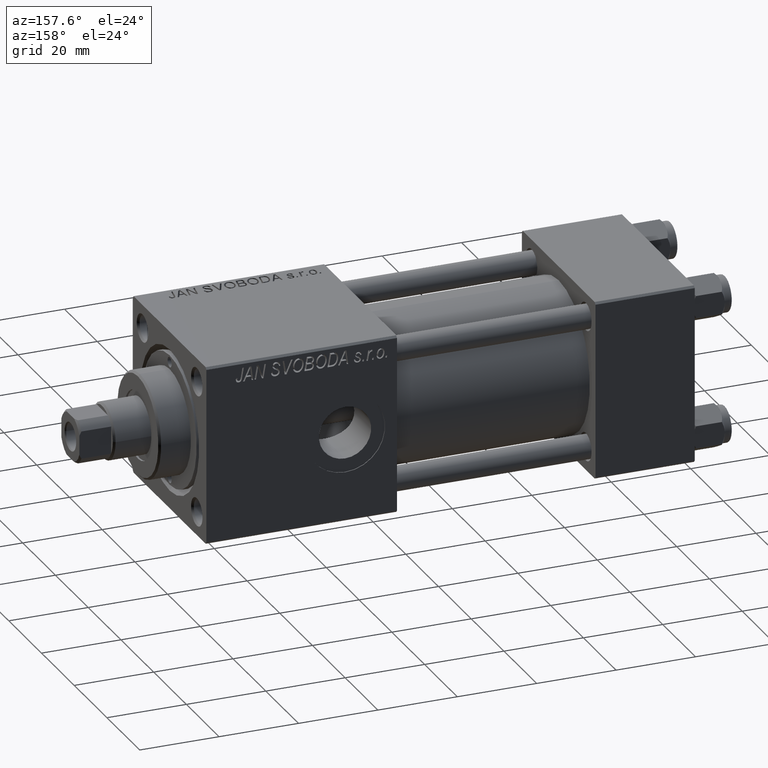
[diagram: clean part render]
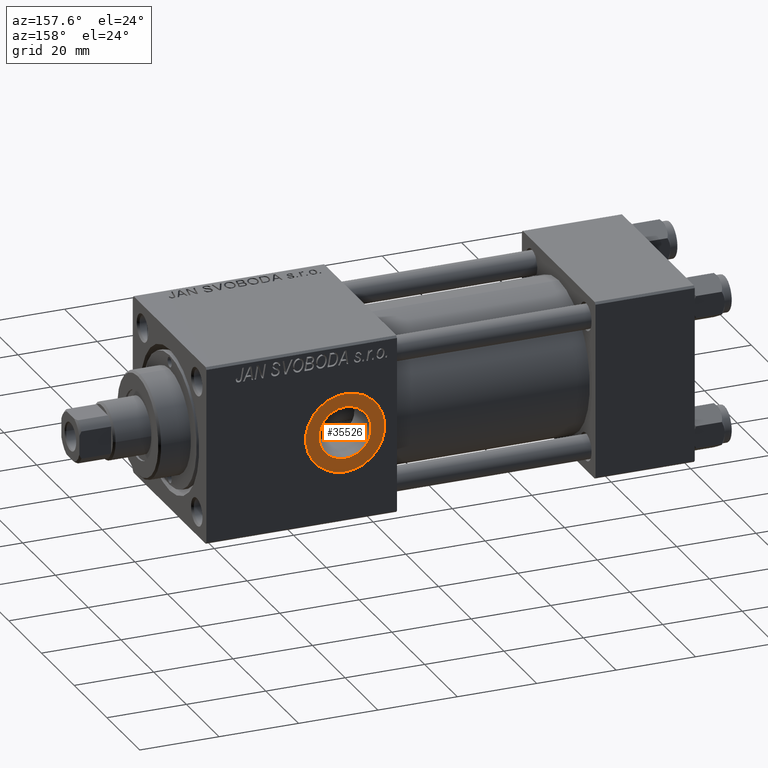
[diagram: same view with one face highlighted and labeled with its STEP entity id]
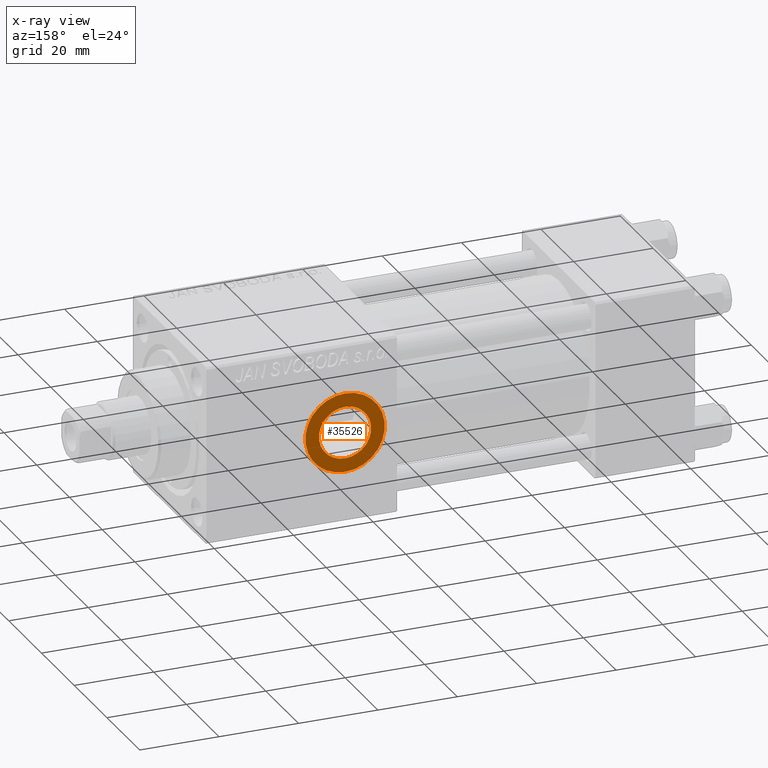
[diagram: x-ray of the same camera — body ghosted, the highlighted face saturated]
A machine part, auxiliary view. The second image highlights one B-rep face of the part: STEP entity #35526.
The next image is the same camera in x-ray: the body ghosted, the highlighted face saturated — about 0% of this face is hidden behind the body in this view.
In plain terms, the highlighted planar face has unit normal (0, 1, 0).
Its self-contained STEP definition (entity closure, byte-faithful):
#750 = CIRCLE ( 'NONE', #5602, 9.999999999999994671 ) ;
#2468 = CARTESIAN_POINT ( 'NONE',  ( 88.00000000000001421, 22.30000000000000426, -6.580000000000002736 ) ) ;
#2981 = EDGE_CURVE ( 'NONE', #28911, #33301, #43529, .T. ) ;
#3371 = DIRECTION ( 'NONE',  ( 0.000000000000000000, 1.000000000000000000, 0.000000000000000000 ) ) ;
#5602 = AXIS2_PLACEMENT_3D ( 'NONE', #31962, #30774, #35780 ) ;
#6459 = CARTESIAN_POINT ( 'NONE',  ( 88.00000000000001421, 22.30000000000000426, 6.580000000000002736 ) ) ;
#7649 = ORIENTED_EDGE ( 'NONE', *, *, #49672, .F. ) ;
#8480 = CIRCLE ( 'NONE', #48298, 6.580000000000002736 ) ;
#11507 = FACE_BOUND ( 'NONE', #18311, .T. ) ;
#11860 = DIRECTION ( 'NONE',  ( 0.000000000000000000, 0.000000000000000000, 1.000000000000000000 ) ) ;
#12337 = DIRECTION ( 'NONE',  ( 0.000000000000000000, 0.000000000000000000, 1.000000000000000000 ) ) ;
#12508 = DIRECTION ( 'NONE',  ( 0.000000000000000000, -0.000000000000000000, 1.000000000000000000 ) ) ;
#14582 = AXIS2_PLACEMENT_3D ( 'NONE', #39469, #27270, #12508 ) ;
#15928 = AXIS2_PLACEMENT_3D ( 'NONE', #26854, #42640, #12337 ) ;
#16097 = DIRECTION ( 'NONE',  ( 0.000000000000000000, 0.000000000000000000, 1.000000000000000000 ) ) ;
#18311 = EDGE_LOOP ( 'NONE', ( #34846, #7649 ) ) ;
#19623 = CIRCLE ( 'NONE', #48054, 6.580000000000002736 ) ;
#21671 = EDGE_LOOP ( 'NONE', ( #23002, #36867 ) ) ;
#23002 = ORIENTED_EDGE ( 'NONE', *, *, #2981, .T. ) ;
#23964 = FACE_OUTER_BOUND ( 'NONE', #21671, .T. ) ;
#26854 = CARTESIAN_POINT ( 'NONE',  ( 88.00000000000001421, 22.30000000000000426, 0.000000000000000000 ) ) ;
#27270 = DIRECTION ( 'NONE',  ( 0.000000000000000000, 1.000000000000000000, 0.000000000000000000 ) ) ;
#28911 = VERTEX_POINT ( 'NONE', #34961 ) ;
#29414 = CARTESIAN_POINT ( 'NONE',  ( 88.00000000000001421, 22.30000000000000426, 0.000000000000000000 ) ) ;
#30774 = DIRECTION ( 'NONE',  ( 0.000000000000000000, 1.000000000000000000, 0.000000000000000000 ) ) ;
#31444 = DIRECTION ( 'NONE',  ( 0.000000000000000000, 1.000000000000000000, 0.000000000000000000 ) ) ;
#31962 = CARTESIAN_POINT ( 'NONE',  ( 88.00000000000001421, 22.30000000000000426, 0.000000000000000000 ) ) ;
#33301 = VERTEX_POINT ( 'NONE', #33993 ) ;
#33993 = CARTESIAN_POINT ( 'NONE',  ( 88.00000000000001421, 22.30000000000000426, -9.999999999999994671 ) ) ;
#34846 = ORIENTED_EDGE ( 'NONE', *, *, #43679, .F. ) ;
#34904 = EDGE_CURVE ( 'NONE', #33301, #28911, #750, .T. ) ;
#34961 = CARTESIAN_POINT ( 'NONE',  ( 88.00000000000001421, 22.30000000000000426, 9.999999999999994671 ) ) ;
#35526 = ADVANCED_FACE ( 'NONE', ( #11507, #23964 ), #38720, .T. ) ;
#35780 = DIRECTION ( 'NONE',  ( 0.000000000000000000, 0.000000000000000000, 1.000000000000000000 ) ) ;
#36867 = ORIENTED_EDGE ( 'NONE', *, *, #34904, .T. ) ;
#38720 = PLANE ( 'NONE',  #14582 ) ;
#39469 = CARTESIAN_POINT ( 'NONE',  ( 88.00000000000001421, 22.30000000000000426, 0.000000000000000000 ) ) ;
#41197 = VERTEX_POINT ( 'NONE', #2468 ) ;
#42158 = CARTESIAN_POINT ( 'NONE',  ( 88.00000000000001421, 22.30000000000000426, 0.000000000000000000 ) ) ;
#42640 = DIRECTION ( 'NONE',  ( 0.000000000000000000, 1.000000000000000000, 0.000000000000000000 ) ) ;
#43529 = CIRCLE ( 'NONE', #15928, 9.999999999999994671 ) ;
#43679 = EDGE_CURVE ( 'NONE', #47866, #41197, #19623, .T. ) ;
#47866 = VERTEX_POINT ( 'NONE', #6459 ) ;
#48054 = AXIS2_PLACEMENT_3D ( 'NONE', #29414, #3371, #16097 ) ;
#48298 = AXIS2_PLACEMENT_3D ( 'NONE', #42158, #31444, #11860 ) ;
#49672 = EDGE_CURVE ( 'NONE', #41197, #47866, #8480, .T. ) ;